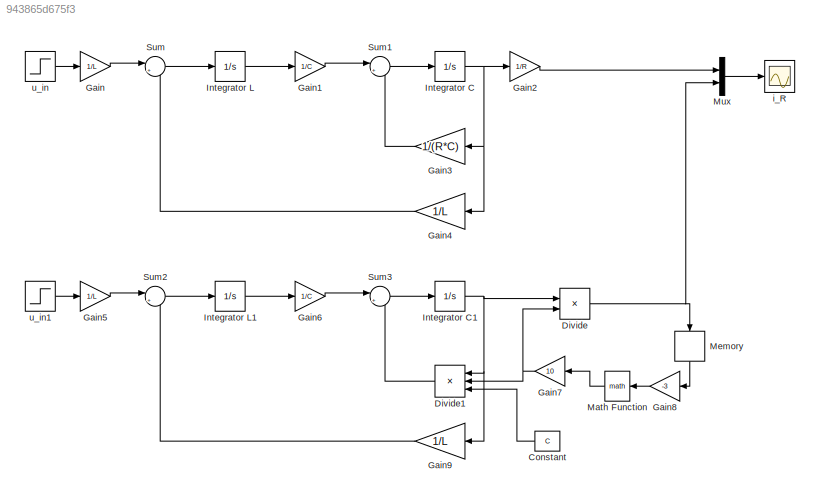
MODEL slx_943865d675f3
KIND model
CONFIG AbsTol = auto
CONFIG EnableMultiTasking = off
CONFIG FixedStep = auto
CONFIG MaxStep = auto
CONFIG MinStep = auto
CONFIG RelTol = 1e-3
CONFIG SampleTimeConstraint = Unconstrained
CONFIG SolverName = VariableStepAuto
CONFIG StartTime = 0.0
CONFIG StopTime = 10.0
BLOCK [Constant] Constant
  Value = C
BLOCK [Product] Divide
  Inputs = */
  Ports = [2, 1]
BLOCK [Product] Divide1
  Inputs = *//
  Ports = [3, 1]
BLOCK [Gain] Gain
  Gain = 1/L
BLOCK [Gain] Gain1
  Gain = 1/C
BLOCK [Gain] Gain2
  Gain = 1/R
BLOCK [Gain] Gain3
  Gain = 1/(R*C)
BLOCK [Gain] Gain4
  Gain = 1/L
BLOCK [Gain] Gain5
  Gain = 1/L
BLOCK [Gain] Gain6
  Gain = 1/C
BLOCK [Gain] Gain7
  Gain = 10
BLOCK [Gain] Gain8
  Gain = -3
BLOCK [Gain] Gain9
  Gain = 1/L
BLOCK [Integrator] Integrator C
  InitialCondition = u_C0
  Ports = [1, 1]
BLOCK [Integrator] Integrator C1
  InitialCondition = u_C0
  Ports = [1, 1]
BLOCK [Integrator] Integrator L
  InitialCondition = i_L0
  Ports = [1, 1]
BLOCK [Integrator] Integrator L1
  InitialCondition = i_L0
  Ports = [1, 1]
BLOCK [Math] Math Function
  Ports = [1, 1]
BLOCK [Memory] Memory
  NameLocation = right
BLOCK [Mux] Mux
  DisplayOption = bar
  Inputs = 2
  Ports = [2, 1]
BLOCK [Sum] Sum
  Inputs = |+-
  Ports = [2, 1]
BLOCK [Sum] Sum1
  Inputs = |+-
  Ports = [2, 1]
BLOCK [Sum] Sum2
  Inputs = |+-
  Ports = [2, 1]
BLOCK [Sum] Sum3
  Inputs = |+-
  Ports = [2, 1]
BLOCK [Scope] i_R
  Floating = off
  NumInputPorts = 1
  Ports = [1]
  ScopeSpecificationString = Simulink.scopes.TimeScopeBlockCfg('CurrentConfiguration', extmgr.ConfigurationSet(extmgr.Configuration('Core','General UI',true),extmgr.Configuration('Core','Source UI',true),extmgr.Configuration('Sources','WiredSimulink',true),extmgr.Configuration('Visuals','Time Domain',true,'SerializedDisplays',{struct('MinYLimReal','-0.04636','MaxYLimReal','0.41727','YLabelReal','','MinYLimMag','0.00000','MaxY...<+1360ch>
BLOCK [Step] u_in
  SampleTime = 0
BLOCK [Step] u_in1
  SampleTime = 0
LINE Constant:1 -> Divide1:3
LINE Divide1:1 -> Sum3:2
NET Divide:1 -> Memory:1, Mux:2
LINE Gain1:1 -> Sum1:1
LINE Gain2:1 -> Mux:1
LINE Gain3:1 -> Sum1:2
LINE Gain4:1 -> Sum:2
LINE Gain5:1 -> Sum2:1
LINE Gain6:1 -> Sum3:1
NET Gain7:1 -> Divide1:2, Divide:2
LINE Gain8:1 -> Math Function:1
LINE Gain9:1 -> Sum2:2
LINE Gain:1 -> Sum:1
NET Integrator C1:1 -> Divide1:1, Divide:1, Gain9:1
NET Integrator C:1 -> Gain2:1, Gain3:1, Gain4:1
LINE Integrator L1:1 -> Gain6:1
LINE Integrator L:1 -> Gain1:1
LINE Math Function:1 -> Gain7:1
LINE Memory:1 -> Gain8:1
LINE Mux:1 -> i_R:1
LINE Sum1:1 -> Integrator C:1
LINE Sum2:1 -> Integrator L1:1
LINE Sum3:1 -> Integrator C1:1
LINE Sum:1 -> Integrator L:1
LINE u_in1:1 -> Gain5:1
LINE u_in:1 -> Gain:1
note: NET lines group one-source signal fan-out (src -> all destinations, sorted); 1:1 wires keep LINE
